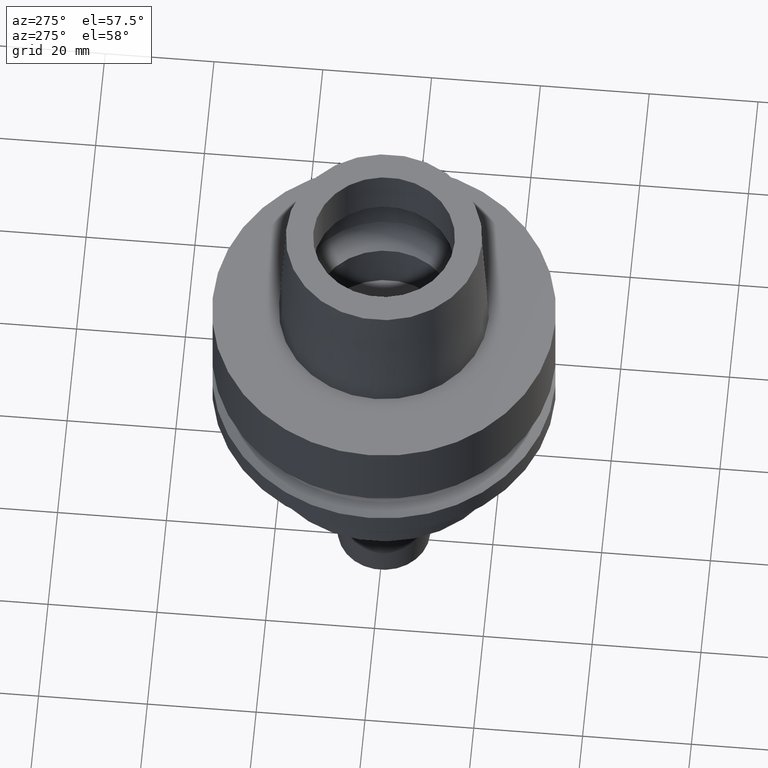
[diagram: clean part render]
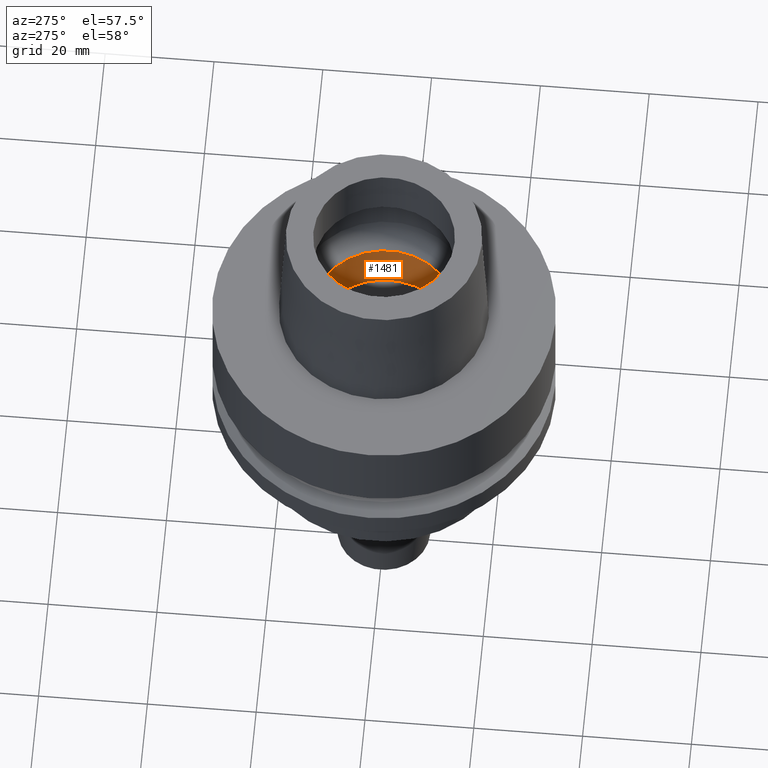
[diagram: same view with one face highlighted and labeled with its STEP entity id]
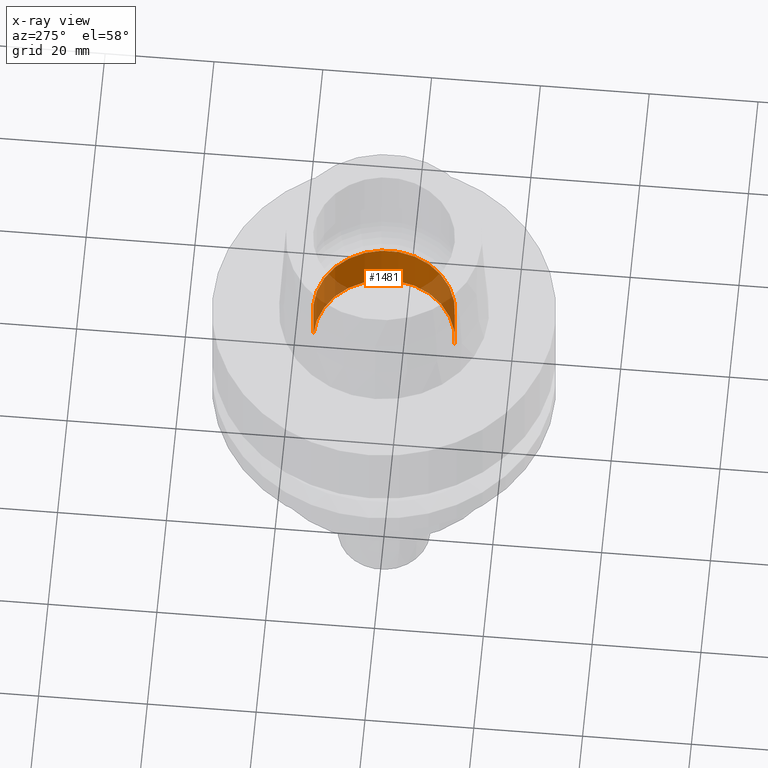
[diagram: x-ray of the same camera — body ghosted, the highlighted face saturated]
A machine part, auxiliary view. The second image highlights one B-rep face of the part: STEP entity #1481.
The next image is the same camera in x-ray: the body ghosted, the highlighted face saturated — about 34% of this face is hidden behind the body in this view.
In plain terms, the highlighted cylindrical surface (partial cylindrical patch) has radius 13 mm, axis along (0, 0, -1).
Its self-contained STEP definition (entity closure, byte-faithful):
#590=CARTESIAN_POINT('',(0.E0,0.E0,-9.95E0));
#591=DIRECTION('',(0.E0,0.E0,-1.E0));
#592=DIRECTION('',(0.E0,1.E0,0.E0));
#593=AXIS2_PLACEMENT_3D('',#590,#591,#592);
#614=DIRECTION('',(0.E0,0.E0,1.E0));
#615=VECTOR('',#614,9.95E0);
#616=CARTESIAN_POINT('',(0.E0,-1.3E1,-9.95E0));
#617=LINE('',#616,#615);
#629=DIRECTION('',(0.E0,0.E0,1.E0));
#630=VECTOR('',#629,9.95E0);
#631=CARTESIAN_POINT('',(0.E0,1.3E1,-9.95E0));
#632=LINE('',#631,#630);
#643=CARTESIAN_POINT('',(0.E0,0.E0,0.E0));
#644=DIRECTION('',(0.E0,0.E0,1.E0));
#645=DIRECTION('',(0.E0,-1.E0,0.E0));
#646=AXIS2_PLACEMENT_3D('',#643,#644,#645);
#804=CARTESIAN_POINT('',(0.E0,1.3E1,0.E0));
#805=VERTEX_POINT('',#804);
#806=CARTESIAN_POINT('',(0.E0,-1.3E1,0.E0));
#807=VERTEX_POINT('',#806);
#808=CARTESIAN_POINT('',(0.E0,1.3E1,-9.95E0));
#809=VERTEX_POINT('',#808);
#810=CARTESIAN_POINT('',(0.E0,-1.3E1,-9.95E0));
#811=VERTEX_POINT('',#810);
#1469=CARTESIAN_POINT('',(0.E0,0.E0,3.E1));
#1470=DIRECTION('',(0.E0,0.E0,-1.E0));
#1471=DIRECTION('',(0.E0,-1.E0,0.E0));
#1472=AXIS2_PLACEMENT_3D('',#1469,#1470,#1471);
#1473=CYLINDRICAL_SURFACE('',#1472,1.3E1);
#1474=ORIENTED_EDGE('',*,*,#1459,.T.);
#1476=ORIENTED_EDGE('',*,*,#1475,.F.);
#1477=ORIENTED_EDGE('',*,*,#1462,.F.);
#1478=ORIENTED_EDGE('',*,*,#1445,.F.);
#1479=EDGE_LOOP('',(#1474,#1476,#1477,#1478));
#1480=FACE_OUTER_BOUND('',#1479,.F.);
#594=CIRCLE('',#593,1.3E1);
#647=CIRCLE('',#646,1.3E1);
#1445=EDGE_CURVE('',#809,#811,#594,.T.);
#1459=EDGE_CURVE('',#809,#805,#632,.T.);
#1462=EDGE_CURVE('',#811,#807,#617,.T.);
#1475=EDGE_CURVE('',#807,#805,#647,.T.);
#1481=ADVANCED_FACE('',(#1480),#1473,.F.);